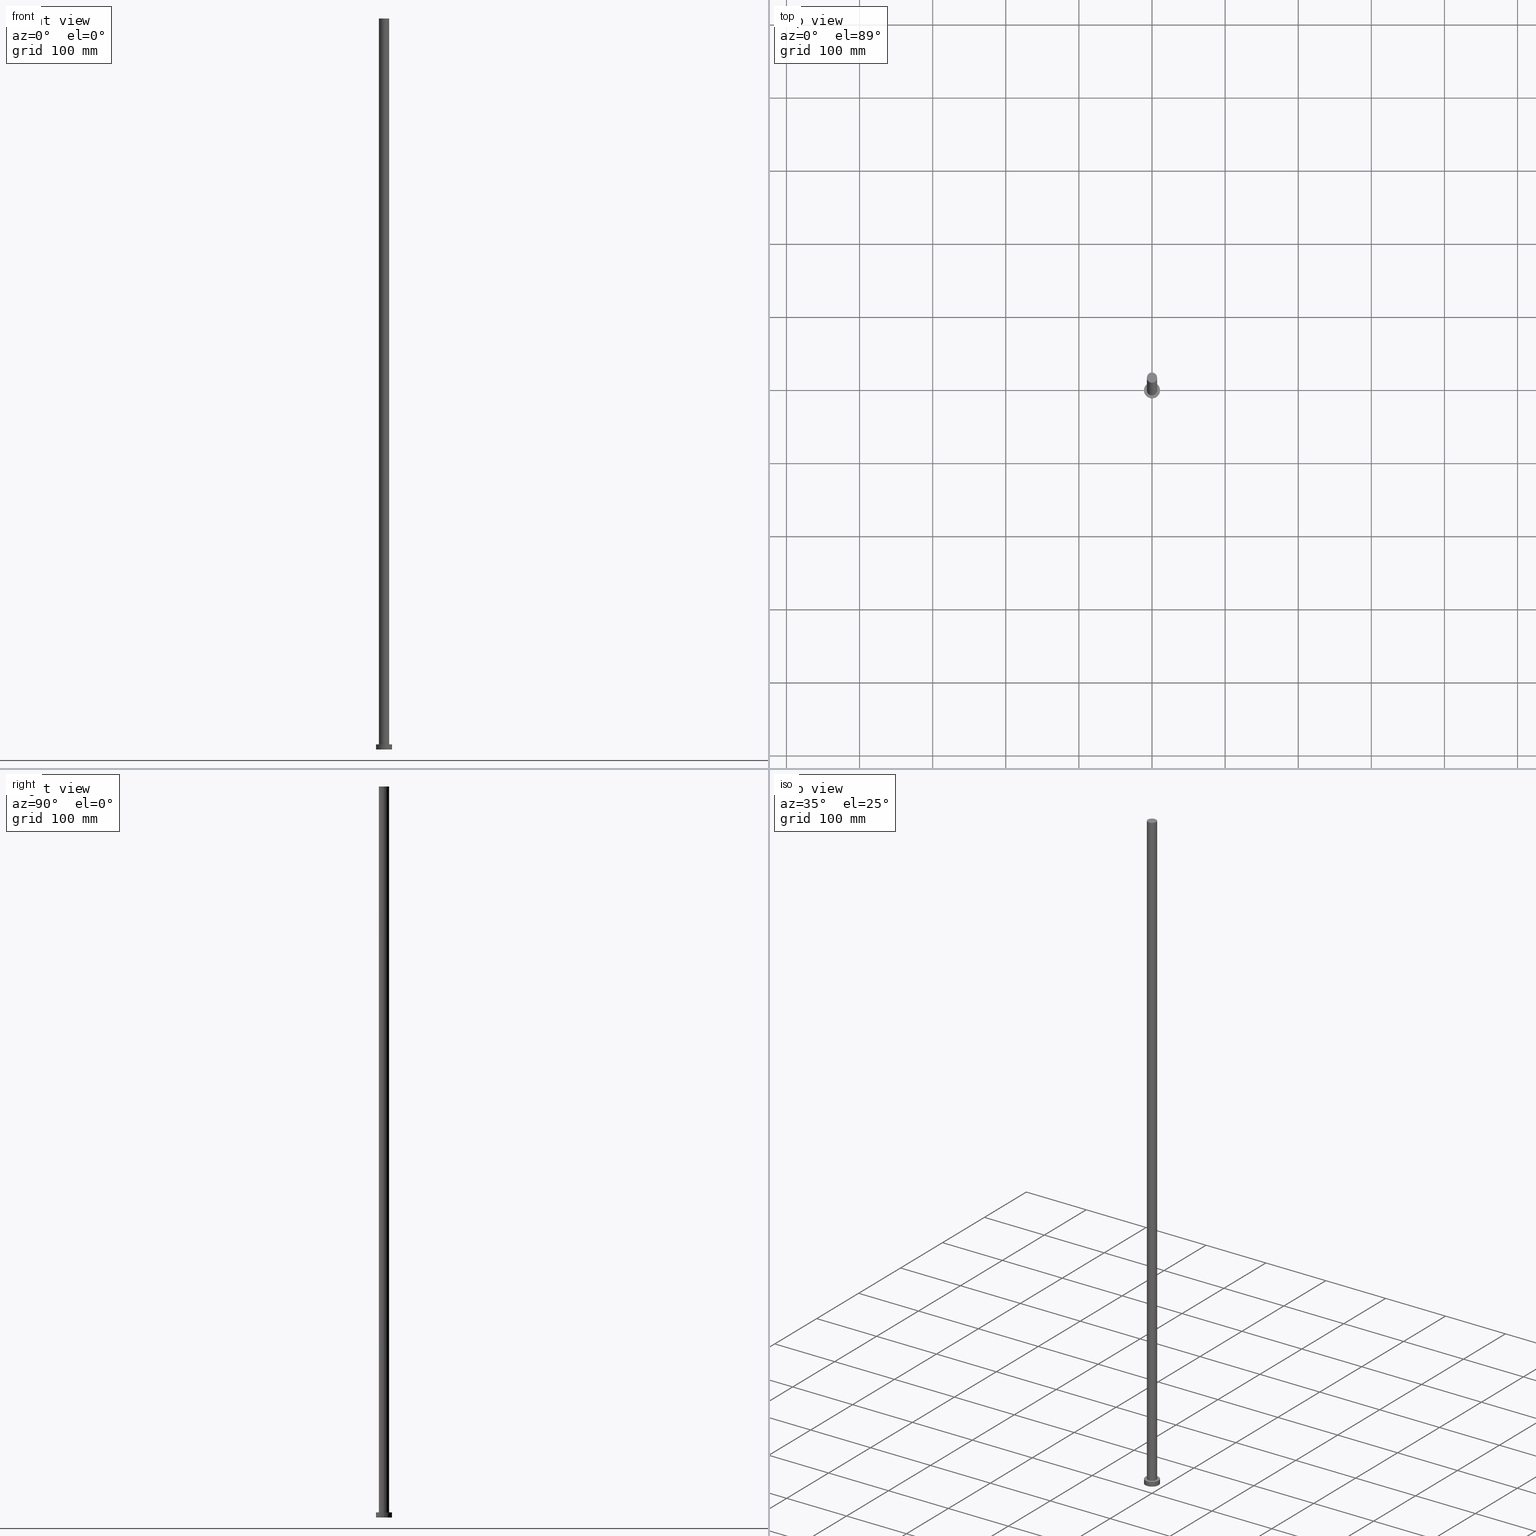
[diagram: canonical four-view strip — front | top / right | iso, engineering-drawing reading convention]
A machine part, canonical four-view strip (front | top / right | iso — engineering-drawing reading convention). The complete STEP part file that produces these views, byte-faithful:
ISO-10303-21;
HEADER;
FILE_DESCRIPTION (( 'STEP AP203' ),
    '1' );
FILE_NAME ('cbc4.STEP',
    '2023-02-13T08:53:46',
    ( '' ),
    ( '' ),
    'SwSTEP 2.0',
    'SolidWorks 2019',
    '' );
FILE_SCHEMA (( 'CONFIG_CONTROL_DESIGN' ));
ENDSEC;

DATA;
#1 = APPROVAL_ROLE ( '' ) ;
#2 = VERTEX_POINT ( 'NONE', #88 ) ;
#3 = CIRCLE ( 'NONE', #189, 11.00000000000000000 ) ;
#4 = EDGE_CURVE ( 'NONE', #222, #65, #75, .T. ) ;
#5 = CC_DESIGN_DATE_AND_TIME_ASSIGNMENT ( #37, #110, ( #182 ) ) ;
#6 = EDGE_LOOP ( 'NONE', ( #200, #176 ) ) ;
#7 = CLOSED_SHELL ( 'NONE', ( #71, #46, #87, #158, #125, #169, #159 ) ) ;
#8 = CC_DESIGN_PERSON_AND_ORGANIZATION_ASSIGNMENT ( #198, #43, ( #112 ) ) ;
#9 = DIRECTION ( 'NONE',  ( 1.000000000000000000, 0.000000000000000000, 0.000000000000000000 ) ) ;
#10 = LINE ( 'NONE', #94, #95 ) ;
#11 = DIRECTION ( 'NONE',  ( -1.000000000000000000, 0.000000000000000000, 0.000000000000000000 ) ) ;
#12 = PRODUCT_DEFINITION_SHAPE ( 'NONE', 'NONE',  #182 ) ;
#13 = ORIENTED_EDGE ( 'NONE', *, *, #72, .F. ) ;
#14 = FACE_OUTER_BOUND ( 'NONE', #31, .T. ) ;
#15 = FACE_BOUND ( 'NONE', #122, .T. ) ;
#16 = EDGE_CURVE ( 'NONE', #222, #175, #111, .T. ) ;
#17 = ORGANIZATION ( 'NEUR�EN�', 'NEUR�EN�', '' ) ;
#18 =( NAMED_UNIT ( * ) SI_UNIT ( $, .STERADIAN. ) SOLID_ANGLE_UNIT ( ) );
#19 =( LENGTH_UNIT ( ) NAMED_UNIT ( * ) SI_UNIT ( .MILLI., .METRE. ) );
#20 = DIRECTION ( 'NONE',  ( 0.000000000000000000, 0.000000000000000000, 1.000000000000000000 ) ) ;
#21 = DATE_AND_TIME ( #192, #73 ) ;
#22 = AXIS2_PLACEMENT_3D ( 'NONE', #238, #81, #219 ) ;
#23 = DIRECTION ( 'NONE',  ( 1.000000000000000000, 0.000000000000000000, -0.000000000000000000 ) ) ;
#24 = ORIENTED_EDGE ( 'NONE', *, *, #207, .T. ) ;
#25 = COORDINATED_UNIVERSAL_TIME_OFFSET ( 1, 0, .AHEAD. ) ;
#26 = VECTOR ( 'NONE', #167, 1000.000000000000000 ) ;
#27 = CC_DESIGN_PERSON_AND_ORGANIZATION_ASSIGNMENT ( #154, #197, ( #135 ) ) ;
#28 = APPLICATION_PROTOCOL_DEFINITION ( 'international standard', 'config_control_design', 1994, #119 ) ;
#29 = VERTEX_POINT ( 'NONE', #187 ) ;
#30 = ORIENTED_EDGE ( 'NONE', *, *, #89, .F. ) ;
#31 = EDGE_LOOP ( 'NONE', ( #203, #13, #108, #226 ) ) ;
#32 = FACE_OUTER_BOUND ( 'NONE', #93, .T. ) ;
#33 = APPROVAL_PERSON_ORGANIZATION ( #190, #143, #40 ) ;
#34 = CARTESIAN_POINT ( 'NONE',  ( 7.000000000000000888, 8.572527594031474176E-16, 7.000000000000000000 ) ) ;
#35 = DIRECTION ( 'NONE',  ( -0.000000000000000000, -0.000000000000000000, -1.000000000000000000 ) ) ;
#36 = DIRECTION ( 'NONE',  ( 0.000000000000000000, 0.000000000000000000, 1.000000000000000000 ) ) ;
#37 = DATE_AND_TIME ( #212, #233 ) ;
#38 = VECTOR ( 'NONE', #213, 1000.000000000000000 ) ;
#39 = DIRECTION ( 'NONE',  ( 1.000000000000000000, 0.000000000000000000, 0.000000000000000000 ) ) ;
#40 = APPROVAL_ROLE ( '' ) ;
#41 = APPROVAL_STATUS ( 'not_yet_approved' ) ;
#42 = CARTESIAN_POINT ( 'NONE',  ( 0.000000000000000000, 0.000000000000000000, 1000.000000000000000 ) ) ;
#43 = PERSON_AND_ORGANIZATION_ROLE ( 'design_supplier' ) ;
#44 = AXIS2_PLACEMENT_3D ( 'NONE', #42, #36, #96 ) ;
#45 = EDGE_LOOP ( 'NONE', ( #47, #124 ) ) ;
#46 = ADVANCED_FACE ( 'NONE', ( #161 ), #162, .T. ) ;
#47 = ORIENTED_EDGE ( 'NONE', *, *, #220, .T. ) ;
#48 = PERSON_AND_ORGANIZATION ( #165, #17 ) ;
#49 = DIRECTION ( 'NONE',  ( -1.000000000000000000, 0.000000000000000000, 0.000000000000000000 ) ) ;
#50 = CARTESIAN_POINT ( 'NONE',  ( 0.000000000000000000, 0.000000000000000000, 7.000000000000000000 ) ) ;
#51 = CC_DESIGN_APPROVAL ( #140, ( #182 ) ) ;
#52 = ORIENTED_EDGE ( 'NONE', *, *, #217, .F. ) ;
#53 = CC_DESIGN_PERSON_AND_ORGANIZATION_ASSIGNMENT ( #80, #234, ( #182 ) ) ;
#54 = FACE_OUTER_BOUND ( 'NONE', #243, .T. ) ;
#55 = CARTESIAN_POINT ( 'NONE',  ( 0.000000000000000000, 0.000000000000000000, 0.000000000000000000 ) ) ;
#56 = DIRECTION ( 'NONE',  ( -1.000000000000000000, 0.000000000000000000, 0.000000000000000000 ) ) ;
#57 = APPLICATION_PROTOCOL_DEFINITION ( 'international standard', 'config_control_design', 1994, #104 ) ;
#58 = FACE_OUTER_BOUND ( 'NONE', #246, .T. ) ;
#59 = APPROVAL_DATE_TIME ( #251, #140 ) ;
#60 = DIRECTION ( 'NONE',  ( 1.000000000000000000, 0.000000000000000000, 0.000000000000000000 ) ) ;
#61 = AXIS2_PLACEMENT_3D ( 'NONE', #181, #35, #145 ) ;
#62 = EDGE_CURVE ( 'NONE', #105, #221, #10, .T. ) ;
#63 = AXIS2_PLACEMENT_3D ( 'NONE', #235, #20, #255 ) ;
#64 = VERTEX_POINT ( 'NONE', #146 ) ;
#65 = VERTEX_POINT ( 'NONE', #34 ) ;
#66 = PERSON_AND_ORGANIZATION ( #165, #17 ) ;
#67 = ORIENTED_EDGE ( 'NONE', *, *, #97, .T. ) ;
#68 = CYLINDRICAL_SURFACE ( 'NONE', #70, 11.00000000000000000 ) ;
#69 = ORIENTED_EDGE ( 'NONE', *, *, #217, .T. ) ;
#70 = AXIS2_PLACEMENT_3D ( 'NONE', #231, #107, #11 ) ;
#71 = ADVANCED_FACE ( 'NONE', ( #32 ), #244, .T. ) ;
#72 = EDGE_CURVE ( 'NONE', #105, #64, #3, .T. ) ;
#73 = LOCAL_TIME ( 9, 53, 46.00000000000000000, #215 ) ;
#74 = DIRECTION ( 'NONE',  ( -0.000000000000000000, -0.000000000000000000, -1.000000000000000000 ) ) ;
#75 = LINE ( 'NONE', #106, #26 ) ;
#76 = ORIENTED_EDGE ( 'NONE', *, *, #202, .F. ) ;
#77 = DIRECTION ( 'NONE',  ( 1.000000000000000000, 0.000000000000000000, 0.000000000000000000 ) ) ;
#78 = CC_DESIGN_SECURITY_CLASSIFICATION ( #142, ( #112 ) ) ;
#79 = DIRECTION ( 'NONE',  ( 0.000000000000000000, 0.000000000000000000, 1.000000000000000000 ) ) ;
#80 = PERSON_AND_ORGANIZATION ( #165, #17 ) ;
#81 = DIRECTION ( 'NONE',  ( 0.000000000000000000, 0.000000000000000000, 1.000000000000000000 ) ) ;
#82 = CARTESIAN_POINT ( 'NONE',  ( 7.000000000000000888, 8.572527594031474176E-16, 1000.000000000000000 ) ) ;
#83 = LINE ( 'NONE', #152, #38 ) ;
#84 = APPROVAL_STATUS ( 'not_yet_approved' ) ;
#85 =( GEOMETRIC_REPRESENTATION_CONTEXT ( 3 ) GLOBAL_UNCERTAINTY_ASSIGNED_CONTEXT ( ( #86 ) ) GLOBAL_UNIT_ASSIGNED_CONTEXT ( ( #19, #98, #18 ) ) REPRESENTATION_CONTEXT ( 'NONE', 'WORKASPACE' ) );
#86 = UNCERTAINTY_MEASURE_WITH_UNIT (LENGTH_MEASURE( 1.000000000000000082E-05 ), #19, 'distance_accuracy_value', 'NONE');
#87 = ADVANCED_FACE ( 'NONE', ( #14 ), #68, .T. ) ;
#88 = CARTESIAN_POINT ( 'NONE',  ( 11.00000000000000000, 1.347111479062088405E-15, 0.000000000000000000 ) ) ;
#89 = EDGE_CURVE ( 'NONE', #2, #221, #245, .T. ) ;
#90 = ORIENTED_EDGE ( 'NONE', *, *, #220, .F. ) ;
#91 = VECTOR ( 'NONE', #166, 1000.000000000000000 ) ;
#92 = CARTESIAN_POINT ( 'NONE',  ( -11.00000000000000000, 0.000000000000000000, 7.000000000000000000 ) ) ;
#93 = EDGE_LOOP ( 'NONE', ( #206, #186, #24, #196 ) ) ;
#94 = CARTESIAN_POINT ( 'NONE',  ( -11.00000000000000000, 0.000000000000000000, 7.000000000000000000 ) ) ;
#95 = VECTOR ( 'NONE', #127, 1000.000000000000000 ) ;
#96 = DIRECTION ( 'NONE',  ( 1.000000000000000000, 0.000000000000000000, -0.000000000000000000 ) ) ;
#97 = EDGE_CURVE ( 'NONE', #64, #2, #248, .T. ) ;
#98 =( NAMED_UNIT ( * ) PLANE_ANGLE_UNIT ( ) SI_UNIT ( $, .RADIAN. ) );
#99 = DIRECTION ( 'NONE',  ( 1.000000000000000000, 0.000000000000000000, 0.000000000000000000 ) ) ;
#100 = CC_DESIGN_PERSON_AND_ORGANIZATION_ASSIGNMENT ( #48, #120, ( #112 ) ) ;
#101 = EDGE_LOOP ( 'NONE', ( #76, #67, #103, #208 ) ) ;
#102 = APPROVAL_PERSON_ORGANIZATION ( #66, #253, #1 ) ;
#103 = ORIENTED_EDGE ( 'NONE', *, *, #89, .T. ) ;
#104 = APPLICATION_CONTEXT ( 'configuration controlled 3d designs of mechanical parts and assemblies' ) ;
#105 = VERTEX_POINT ( 'NONE', #92 ) ;
#106 = CARTESIAN_POINT ( 'NONE',  ( 7.000000000000000888, 8.572527594031474176E-16, 1000.000000000000000 ) ) ;
#107 = DIRECTION ( 'NONE',  ( -0.000000000000000000, -0.000000000000000000, -1.000000000000000000 ) ) ;
#108 = ORIENTED_EDGE ( 'NONE', *, *, #62, .T. ) ;
#109 = DIRECTION ( 'NONE',  ( 0.000000000000000000, 0.000000000000000000, 1.000000000000000000 ) ) ;
#110 = DATE_TIME_ROLE ( 'creation_date' ) ;
#111 = CIRCLE ( 'NONE', #179, 7.000000000000000888 ) ;
#112 = PRODUCT_DEFINITION_FORMATION_WITH_SPECIFIED_SOURCE ( 'LIBOVOLN�', '', #135, .NOT_KNOWN. ) ;
#113 = CARTESIAN_POINT ( 'NONE',  ( 0.000000000000000000, 0.000000000000000000, 1000.000000000000000 ) ) ;
#114 = CARTESIAN_POINT ( 'NONE',  ( -7.000000000000000888, 0.000000000000000000, 1000.000000000000000 ) ) ;
#115 = PERSON_AND_ORGANIZATION ( #165, #17 ) ;
#116 = DIRECTION ( 'NONE',  ( -0.000000000000000000, -0.000000000000000000, -1.000000000000000000 ) ) ;
#117 = DATE_TIME_ROLE ( 'classification_date' ) ;
#118 = LOCAL_TIME ( 9, 53, 46.00000000000000000, #25 ) ;
#119 = APPLICATION_CONTEXT ( 'configuration controlled 3d designs of mechanical parts and assemblies' ) ;
#120 = PERSON_AND_ORGANIZATION_ROLE ( 'creator' ) ;
#121 = LOCAL_TIME ( 9, 53, 46.00000000000000000, #141 ) ;
#122 = EDGE_LOOP ( 'NONE', ( #52, #210 ) ) ;
#123 = PERSON_AND_ORGANIZATION_ROLE ( 'classification_officer' ) ;
#124 = ORIENTED_EDGE ( 'NONE', *, *, #16, .T. ) ;
#125 = ADVANCED_FACE ( 'NONE', ( #54 ), #128, .F. ) ;
#126 = CARTESIAN_POINT ( 'NONE',  ( 0.000000000000000000, 0.000000000000000000, 1000.000000000000000 ) ) ;
#127 = DIRECTION ( 'NONE',  ( -0.000000000000000000, -0.000000000000000000, -1.000000000000000000 ) ) ;
#128 = PLANE ( 'NONE',  #164 ) ;
#129 = DIRECTION ( 'NONE',  ( 0.000000000000000000, 0.000000000000000000, 1.000000000000000000 ) ) ;
#130 = DIRECTION ( 'NONE',  ( 1.000000000000000000, 0.000000000000000000, 0.000000000000000000 ) ) ;
#131 = CALENDAR_DATE ( 2023, 13, 2 ) ;
#132 = MECHANICAL_CONTEXT ( 'NONE', #104, 'mechanical' ) ;
#133 = AXIS2_PLACEMENT_3D ( 'NONE', #252, #211, #60 ) ;
#134 = CC_DESIGN_DATE_AND_TIME_ASSIGNMENT ( #178, #117, ( #142 ) ) ;
#135 = PRODUCT ( 'cbc4', 'cbc4', '', ( #132 ) ) ;
#136 = CYLINDRICAL_SURFACE ( 'NONE', #254, 7.000000000000000888 ) ;
#137 = COORDINATED_UNIVERSAL_TIME_OFFSET ( 1, 0, .AHEAD. ) ;
#138 = CIRCLE ( 'NONE', #224, 7.000000000000000888 ) ;
#139 = APPROVAL_DATE_TIME ( #21, #143 ) ;
#140 = APPROVAL ( #41, 'NEUR�EN�' ) ;
#141 = COORDINATED_UNIVERSAL_TIME_OFFSET ( 1, 0, .AHEAD. ) ;
#142 = SECURITY_CLASSIFICATION ( '', '', #242 ) ;
#143 = APPROVAL ( #170, 'NEUR�EN�' ) ;
#144 = CARTESIAN_POINT ( 'NONE',  ( 0.000000000000000000, 0.000000000000000000, 0.000000000000000000 ) ) ;
#145 = DIRECTION ( 'NONE',  ( -1.000000000000000000, 0.000000000000000000, 0.000000000000000000 ) ) ;
#146 = CARTESIAN_POINT ( 'NONE',  ( 11.00000000000000000, 1.347111479062088405E-15, 7.000000000000000000 ) ) ;
#147 = DIRECTION ( 'NONE',  ( 0.000000000000000000, 0.000000000000000000, 1.000000000000000000 ) ) ;
#148 = EDGE_CURVE ( 'NONE', #221, #2, #185, .T. ) ;
#149 = FACE_OUTER_BOUND ( 'NONE', #6, .T. ) ;
#150 = APPROVAL_ROLE ( '' ) ;
#151 = DIRECTION ( 'NONE',  ( 0.000000000000000000, 0.000000000000000000, 1.000000000000000000 ) ) ;
#152 = CARTESIAN_POINT ( 'NONE',  ( -7.000000000000000888, 0.000000000000000000, 1000.000000000000000 ) ) ;
#153 = FACE_OUTER_BOUND ( 'NONE', #45, .T. ) ;
#154 = PERSON_AND_ORGANIZATION ( #165, #17 ) ;
#155 = PERSON_AND_ORGANIZATION ( #165, #17 ) ;
#156 = CALENDAR_DATE ( 2023, 13, 2 ) ;
#157 = CIRCLE ( 'NONE', #173, 7.000000000000000888 ) ;
#158 = ADVANCED_FACE ( 'NONE', ( #15, #149 ), #172, .T. ) ;
#159 = ADVANCED_FACE ( 'NONE', ( #153 ), #193, .T. ) ;
#160 = ORIENTED_EDGE ( 'NONE', *, *, #4, .F. ) ;
#161 = FACE_OUTER_BOUND ( 'NONE', #101, .T. ) ;
#162 = CYLINDRICAL_SURFACE ( 'NONE', #61, 11.00000000000000000 ) ;
#163 = AXIS2_PLACEMENT_3D ( 'NONE', #227, #74, #49 ) ;
#164 = AXIS2_PLACEMENT_3D ( 'NONE', #55, #129, #23 ) ;
#165 = PERSON ( 'NEUR�EN�', 'NEUR�EN�', 'NEUR�EN�', ('NEUR�EN�'), ('NEUR�EN�'), ('NEUR�EN�') ) ;
#166 = DIRECTION ( 'NONE',  ( -0.000000000000000000, -0.000000000000000000, -1.000000000000000000 ) ) ;
#167 = DIRECTION ( 'NONE',  ( -0.000000000000000000, -0.000000000000000000, -1.000000000000000000 ) ) ;
#168 = CARTESIAN_POINT ( 'NONE',  ( 0.000000000000000000, 0.000000000000000000, 7.000000000000000000 ) ) ;
#169 = ADVANCED_FACE ( 'NONE', ( #58 ), #136, .T. ) ;
#170 = APPROVAL_STATUS ( 'not_yet_approved' ) ;
#171 = DESIGN_CONTEXT ( 'detailed design', #119, 'design' ) ;
#172 = PLANE ( 'NONE',  #63 ) ;
#173 = AXIS2_PLACEMENT_3D ( 'NONE', #218, #109, #130 ) ;
#174 = CALENDAR_DATE ( 2023, 13, 2 ) ;
#175 = VERTEX_POINT ( 'NONE', #114 ) ;
#176 = ORIENTED_EDGE ( 'NONE', *, *, #202, .T. ) ;
#177 = LOCAL_TIME ( 9, 53, 46.00000000000000000, #239 ) ;
#178 = DATE_AND_TIME ( #156, #118 ) ;
#179 = AXIS2_PLACEMENT_3D ( 'NONE', #126, #183, #209 ) ;
#180 = DIRECTION ( 'NONE',  ( 0.000000000000000000, 0.000000000000000000, 1.000000000000000000 ) ) ;
#181 = CARTESIAN_POINT ( 'NONE',  ( 0.000000000000000000, 0.000000000000000000, 7.000000000000000000 ) ) ;
#182 = PRODUCT_DEFINITION ( 'NEZN�M�', '', #112, #171 ) ;
#183 = DIRECTION ( 'NONE',  ( 0.000000000000000000, 0.000000000000000000, 1.000000000000000000 ) ) ;
#184 = MANIFOLD_SOLID_BREP ( 'P�idat vysunut�m3', #7 ) ;
#185 = CIRCLE ( 'NONE', #22, 11.00000000000000000 ) ;
#186 = ORIENTED_EDGE ( 'NONE', *, *, #4, .T. ) ;
#187 = CARTESIAN_POINT ( 'NONE',  ( -7.000000000000000888, 0.000000000000000000, 7.000000000000000000 ) ) ;
#188 = CARTESIAN_POINT ( 'NONE',  ( -11.00000000000000000, 0.000000000000000000, 0.000000000000000000 ) ) ;
#189 = AXIS2_PLACEMENT_3D ( 'NONE', #50, #147, #229 ) ;
#190 = PERSON_AND_ORGANIZATION ( #165, #17 ) ;
#191 = CIRCLE ( 'NONE', #205, 7.000000000000000888 ) ;
#192 = CALENDAR_DATE ( 2023, 13, 2 ) ;
#193 = PLANE ( 'NONE',  #44 ) ;
#194 = DIRECTION ( 'NONE',  ( 0.000000000000000000, 0.000000000000000000, 1.000000000000000000 ) ) ;
#195 = CC_DESIGN_PERSON_AND_ORGANIZATION_ASSIGNMENT ( #155, #123, ( #142 ) ) ;
#196 = ORIENTED_EDGE ( 'NONE', *, *, #236, .F. ) ;
#197 = PERSON_AND_ORGANIZATION_ROLE ( 'design_owner' ) ;
#198 = PERSON_AND_ORGANIZATION ( #165, #17 ) ;
#199 = SHAPE_DEFINITION_REPRESENTATION ( #12, #230 ) ;
#200 = ORIENTED_EDGE ( 'NONE', *, *, #72, .T. ) ;
#201 = DATE_AND_TIME ( #174, #121 ) ;
#202 = EDGE_CURVE ( 'NONE', #64, #105, #241, .T. ) ;
#203 = ORIENTED_EDGE ( 'NONE', *, *, #97, .F. ) ;
#204 = ORIENTED_EDGE ( 'NONE', *, *, #148, .F. ) ;
#205 = AXIS2_PLACEMENT_3D ( 'NONE', #168, #194, #99 ) ;
#206 = ORIENTED_EDGE ( 'NONE', *, *, #16, .F. ) ;
#207 = EDGE_CURVE ( 'NONE', #65, #29, #191, .T. ) ;
#208 = ORIENTED_EDGE ( 'NONE', *, *, #62, .F. ) ;
#209 = DIRECTION ( 'NONE',  ( 1.000000000000000000, 0.000000000000000000, 0.000000000000000000 ) ) ;
#210 = ORIENTED_EDGE ( 'NONE', *, *, #207, .F. ) ;
#211 = DIRECTION ( 'NONE',  ( 0.000000000000000000, 0.000000000000000000, 1.000000000000000000 ) ) ;
#212 = CALENDAR_DATE ( 2023, 13, 2 ) ;
#213 = DIRECTION ( 'NONE',  ( -0.000000000000000000, -0.000000000000000000, -1.000000000000000000 ) ) ;
#214 = AXIS2_PLACEMENT_3D ( 'NONE', #144, #180, #9 ) ;
#215 = COORDINATED_UNIVERSAL_TIME_OFFSET ( 1, 0, .AHEAD. ) ;
#216 = CC_DESIGN_APPROVAL ( #143, ( #112 ) ) ;
#217 = EDGE_CURVE ( 'NONE', #29, #65, #138, .T. ) ;
#218 = CARTESIAN_POINT ( 'NONE',  ( 0.000000000000000000, 0.000000000000000000, 1000.000000000000000 ) ) ;
#219 = DIRECTION ( 'NONE',  ( 1.000000000000000000, 0.000000000000000000, 0.000000000000000000 ) ) ;
#220 = EDGE_CURVE ( 'NONE', #175, #222, #157, .T. ) ;
#221 = VERTEX_POINT ( 'NONE', #188 ) ;
#222 = VERTEX_POINT ( 'NONE', #82 ) ;
#223 = APPROVAL_DATE_TIME ( #201, #253 ) ;
#224 = AXIS2_PLACEMENT_3D ( 'NONE', #250, #151, #39 ) ;
#225 = ORIENTED_EDGE ( 'NONE', *, *, #236, .T. ) ;
#226 = ORIENTED_EDGE ( 'NONE', *, *, #148, .T. ) ;
#227 = CARTESIAN_POINT ( 'NONE',  ( 0.000000000000000000, 0.000000000000000000, 1000.000000000000000 ) ) ;
#228 = AXIS2_PLACEMENT_3D ( 'NONE', #240, #79, #77 ) ;
#229 = DIRECTION ( 'NONE',  ( 1.000000000000000000, 0.000000000000000000, 0.000000000000000000 ) ) ;
#230 = ADVANCED_BREP_SHAPE_REPRESENTATION ( 'cbc4', ( #184, #133 ), #85 ) ;
#231 = CARTESIAN_POINT ( 'NONE',  ( 0.000000000000000000, 0.000000000000000000, 7.000000000000000000 ) ) ;
#232 = CARTESIAN_POINT ( 'NONE',  ( 11.00000000000000000, 1.347111479062088405E-15, 7.000000000000000000 ) ) ;
#233 = LOCAL_TIME ( 9, 53, 46.00000000000000000, #137 ) ;
#234 = PERSON_AND_ORGANIZATION_ROLE ( 'creator' ) ;
#235 = CARTESIAN_POINT ( 'NONE',  ( 0.000000000000000000, 0.000000000000000000, 7.000000000000000000 ) ) ;
#236 = EDGE_CURVE ( 'NONE', #175, #29, #83, .T. ) ;
#237 = APPROVAL_PERSON_ORGANIZATION ( #115, #140, #150 ) ;
#238 = CARTESIAN_POINT ( 'NONE',  ( 0.000000000000000000, 0.000000000000000000, 0.000000000000000000 ) ) ;
#239 = COORDINATED_UNIVERSAL_TIME_OFFSET ( 1, 0, .AHEAD. ) ;
#240 = CARTESIAN_POINT ( 'NONE',  ( 0.000000000000000000, 0.000000000000000000, 7.000000000000000000 ) ) ;
#241 = CIRCLE ( 'NONE', #228, 11.00000000000000000 ) ;
#242 = SECURITY_CLASSIFICATION_LEVEL ( 'unclassified' ) ;
#243 = EDGE_LOOP ( 'NONE', ( #204, #30 ) ) ;
#244 = CYLINDRICAL_SURFACE ( 'NONE', #163, 7.000000000000000888 ) ;
#245 = CIRCLE ( 'NONE', #214, 11.00000000000000000 ) ;
#246 = EDGE_LOOP ( 'NONE', ( #160, #90, #225, #69 ) ) ;
#247 = CC_DESIGN_APPROVAL ( #253, ( #142 ) ) ;
#248 = LINE ( 'NONE', #232, #91 ) ;
#249 = PRODUCT_RELATED_PRODUCT_CATEGORY ( 'detail', '', ( #135 ) ) ;
#250 = CARTESIAN_POINT ( 'NONE',  ( 0.000000000000000000, 0.000000000000000000, 7.000000000000000000 ) ) ;
#251 = DATE_AND_TIME ( #131, #177 ) ;
#252 = CARTESIAN_POINT ( 'NONE',  ( 0.000000000000000000, 0.000000000000000000, 0.000000000000000000 ) ) ;
#253 = APPROVAL ( #84, 'NEUR�EN�' ) ;
#254 = AXIS2_PLACEMENT_3D ( 'NONE', #113, #116, #56 ) ;
#255 = DIRECTION ( 'NONE',  ( 1.000000000000000000, 0.000000000000000000, -0.000000000000000000 ) ) ;
ENDSEC;
END-ISO-10303-21;
